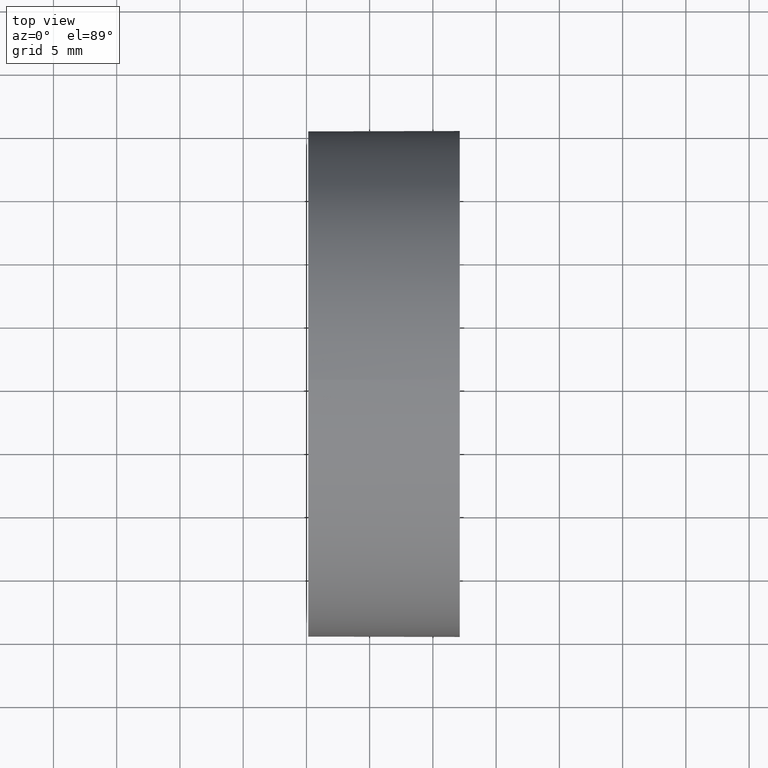
[diagram: clean part render]
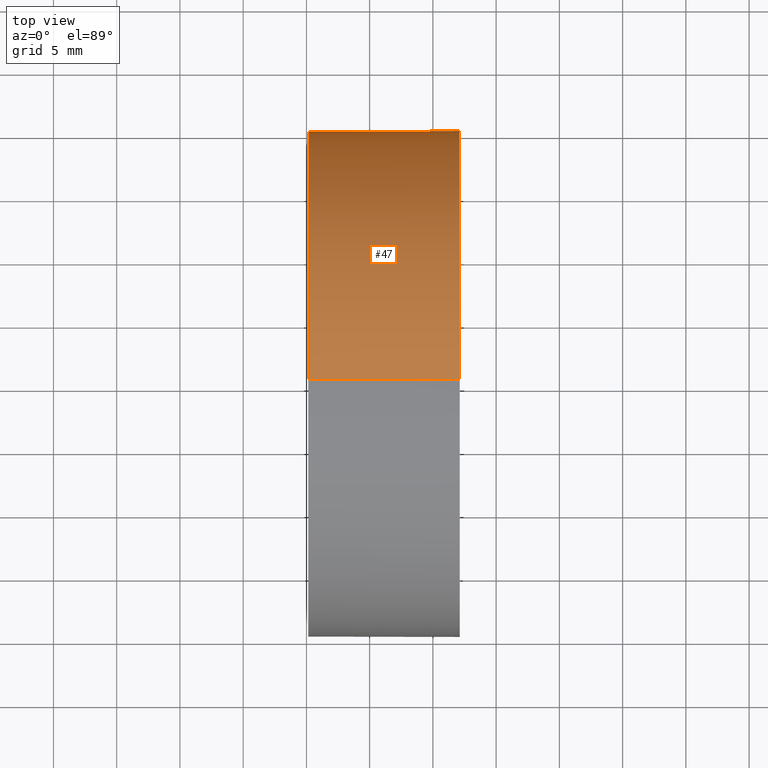
[diagram: same view with one face highlighted and labeled with its STEP entity id]
A machine part, top view. The second image highlights one B-rep face of the part: STEP entity #47.
In plain terms, the highlighted cylindrical surface (partial cylindrical patch) has radius 20 mm, axis along (-1, -0, -0).
Its self-contained STEP definition (entity closure, byte-faithful):
#16 = CARTESIAN_POINT ( 'NONE',  ( 115.1442728140176700, 65.22153625845356800, 0.0000000000000000000 ) ) ;
#18 = VERTEX_POINT ( 'NONE', #125 ) ;
#19 = DIRECTION ( 'NONE',  ( 0.0000000000000000000, 0.0000000000000000000, 1.000000000000000000 ) ) ;
#22 = EDGE_CURVE ( 'NONE', #126, #138, #29, .T. ) ;
#24 = EDGE_CURVE ( 'NONE', #64, #52, #163, .T. ) ;
#29 = LINE ( 'NONE', #136, #62 ) ;
#34 = ORIENTED_EDGE ( 'NONE', *, *, #76, .T. ) ;
#47 = ADVANCED_FACE ( 'NONE', ( #92 ), #86, .T. ) ;
#49 = AXIS2_PLACEMENT_3D ( 'NONE', #104, #130, #102 ) ;
#50 = ORIENTED_EDGE ( 'NONE', *, *, #112, .T. ) ;
#52 = VERTEX_POINT ( 'NONE', #55 ) ;
#53 = DIRECTION ( 'NONE',  ( 0.0000000000000000000, 0.0000000000000000000, 1.000000000000000000 ) ) ;
#55 = CARTESIAN_POINT ( 'NONE',  ( 115.1442728140176700, 65.22153625845356800, 19.99999999999998900 ) ) ;
#56 = DIRECTION ( 'NONE',  ( 0.0000000000000000000, 0.0000000000000000000, 1.000000000000000000 ) ) ;
#62 = VECTOR ( 'NONE', #96, 1000.000000000000000 ) ;
#63 = ORIENTED_EDGE ( 'NONE', *, *, #129, .F. ) ;
#64 = VERTEX_POINT ( 'NONE', #152 ) ;
#68 = AXIS2_PLACEMENT_3D ( 'NONE', #16, #74, #19 ) ;
#69 = CARTESIAN_POINT ( 'NONE',  ( 115.1442728140176700, 65.22153625845356800, -19.99999999999998900 ) ) ;
#74 = DIRECTION ( 'NONE',  ( -1.000000000000000000, -0.0000000000000000000, -0.0000000000000000000 ) ) ;
#76 = EDGE_CURVE ( 'NONE', #18, #126, #171, .T. ) ;
#85 = CIRCLE ( 'NONE', #49, 19.99999999999998900 ) ;
#86 = CYLINDRICAL_SURFACE ( 'NONE', #109, 19.99999999999998900 ) ;
#92 = FACE_OUTER_BOUND ( 'NONE', #110, .T. ) ;
#96 = DIRECTION ( 'NONE',  ( -1.000000000000000000, -0.0000000000000000000, -0.0000000000000000000 ) ) ;
#97 = CARTESIAN_POINT ( 'NONE',  ( 103.2333421658140700, 65.22153625845356800, 19.99999999999998900 ) ) ;
#100 = VECTOR ( 'NONE', #111, 1000.000000000000000 ) ;
#101 = DIRECTION ( 'NONE',  ( -1.000000000000000000, -0.0000000000000000000, -0.0000000000000000000 ) ) ;
#102 = DIRECTION ( 'NONE',  ( 0.0000000000000000000, 0.0000000000000000000, 1.000000000000000000 ) ) ;
#104 = CARTESIAN_POINT ( 'NONE',  ( 127.1225614120891100, 65.22153625845356800, 0.0000000000000000000 ) ) ;
#109 = AXIS2_PLACEMENT_3D ( 'NONE', #139, #101, #56 ) ;
#110 = EDGE_LOOP ( 'NONE', ( #34, #147, #63, #164, #50 ) ) ;
#111 = DIRECTION ( 'NONE',  ( -1.000000000000000000, -0.0000000000000000000, -0.0000000000000000000 ) ) ;
#112 = EDGE_CURVE ( 'NONE', #64, #18, #85, .T. ) ;
#119 = CIRCLE ( 'NONE', #68, 19.99999999999998900 ) ;
#122 = AXIS2_PLACEMENT_3D ( 'NONE', #137, #186, #53 ) ;
#125 = CARTESIAN_POINT ( 'NONE',  ( 127.1225614120891100, 85.22153625845358200, 2.449293598294706500E-015 ) ) ;
#126 = VERTEX_POINT ( 'NONE', #144 ) ;
#129 = EDGE_CURVE ( 'NONE', #52, #138, #119, .T. ) ;
#130 = DIRECTION ( 'NONE',  ( -1.000000000000000000, -0.0000000000000000000, -0.0000000000000000000 ) ) ;
#136 = CARTESIAN_POINT ( 'NONE',  ( 103.2333421658140700, 65.22153625845356800, -19.99999999999998900 ) ) ;
#137 = CARTESIAN_POINT ( 'NONE',  ( 127.1225614120891100, 65.22153625845356800, 0.0000000000000000000 ) ) ;
#138 = VERTEX_POINT ( 'NONE', #69 ) ;
#139 = CARTESIAN_POINT ( 'NONE',  ( 103.2333421658140700, 65.22153625845356800, 0.0000000000000000000 ) ) ;
#144 = CARTESIAN_POINT ( 'NONE',  ( 127.1225614120891100, 65.22153625845356800, -19.99999999999998900 ) ) ;
#147 = ORIENTED_EDGE ( 'NONE', *, *, #22, .T. ) ;
#152 = CARTESIAN_POINT ( 'NONE',  ( 127.1225614120891100, 65.22153625845356800, 19.99999999999998900 ) ) ;
#163 = LINE ( 'NONE', #97, #100 ) ;
#164 = ORIENTED_EDGE ( 'NONE', *, *, #24, .F. ) ;
#171 = CIRCLE ( 'NONE', #122, 19.99999999999998900 ) ;
#186 = DIRECTION ( 'NONE',  ( -1.000000000000000000, -0.0000000000000000000, -0.0000000000000000000 ) ) ;